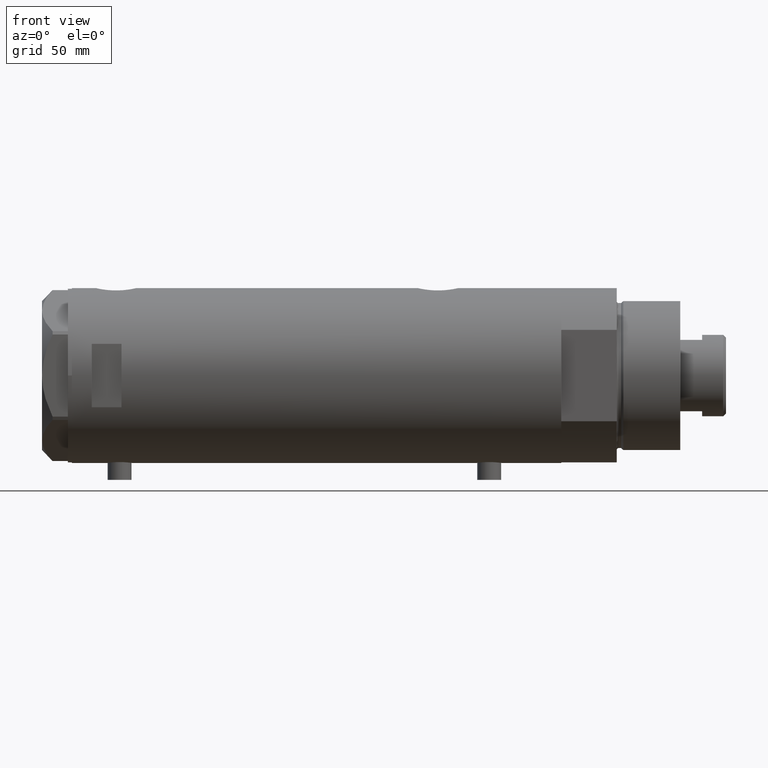
[diagram: clean part render]
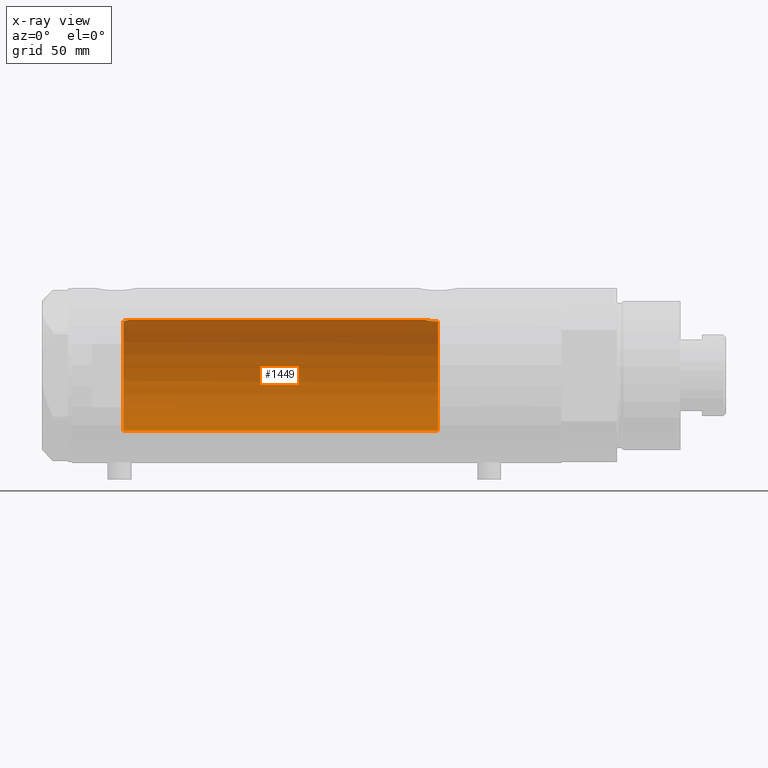
[diagram: x-ray — body ghosted, one internal face saturated and labeled with its STEP entity id]
A machine part, front view, then the same camera in x-ray: the body is ghosted and one INTERNAL B-rep face — a face not visible from any outside direction — is saturated and labeled: STEP entity #1449.
In plain terms, the highlighted cylindrical surface (partial cylindrical patch) has radius 28 mm, axis along (1, 0, -0).
Its self-contained STEP definition (entity closure, byte-faithful):
#18 = CARTESIAN_POINT ( 'NONE',  ( 27.46622653369042411, 5.441176343402230664, 97.20000000000000284 ) ) ;
#29 = EDGE_CURVE ( 'NONE', #2358, #4059, #2152, .T. ) ;
#137 = AXIS2_PLACEMENT_3D ( 'NONE', #1408, #712, #2777 ) ;
#148 = CARTESIAN_POINT ( 'NONE',  ( 27.77951318121830582, 3.511620812961470772, -55.53115835401438005 ) ) ;
#166 = CARTESIAN_POINT ( 'NONE',  ( 27.84585502960274539, 2.940342086136627842, -55.20946914370767189 ) ) ;
#226 = CARTESIAN_POINT ( 'NONE',  ( 27.98435453724556510, 1.072101232728050579, 94.38566097371688102 ) ) ;
#267 = CARTESIAN_POINT ( 'NONE',  ( 28.00000000000000355, 0.5407212781083803321, 94.32000000000002160 ) ) ;
#413 = B_SPLINE_CURVE_WITH_KNOTS ( 'NONE', 3,
 ( #3312, #3016, #4057, #3361, #4341, #1629, #166, #542, #148, #3682, #3381, #2245, #1563, #1932, #560, #1582, #898, #3995, #1895, #1603, #3330, #2971, #1975, #3662 ),
 .UNSPECIFIED., .F., .F.,
 ( 4, 2, 2, 2, 2, 2, 2, 2, 2, 2, 2, 4 ),
 ( 0.02064447638625017609, 0.02194711032043802218, 0.02324974425462586480, 0.02390106122171978612, 0.02455237818881370743, 0.02585501212300156393, 0.02650632909009548177, 0.02715764605718940308, 0.02846027999137725611, 0.02976291392556511262, 0.03041423089265904087, 0.03106554785975296912 ),
 .UNSPECIFIED. ) ;
#542 = CARTESIAN_POINT ( 'NONE',  ( 27.80267334785860101, 3.323944738624905693, -55.41709962017579727 ) ) ;
#555 = ORIENTED_EDGE ( 'NONE', *, *, #4183, .T. ) ;
#560 = CARTESIAN_POINT ( 'NONE',  ( 27.47751794615729537, 5.385218554237039434, -57.31285718566400789 ) ) ;
#569 = CARTESIAN_POINT ( 'NONE',  ( 0.000000000000000000, 0.000000000000000000, 123.2000000000000028 ) ) ;
#594 = ORIENTED_EDGE ( 'NONE', *, *, #1842, .F. ) ;
#606 = VERTEX_POINT ( 'NONE', #18 ) ;
#615 = CARTESIAN_POINT ( 'NONE',  ( 27.93969014165221765, 1.855286977351521704, 94.58124112405663197 ) ) ;
#712 = DIRECTION ( 'NONE',  ( 0.000000000000000000, 0.000000000000000000, 1.000000000000000000 ) ) ;
#798 = AXIS2_PLACEMENT_3D ( 'NONE', #569, #1958, #3832 ) ;
#898 = CARTESIAN_POINT ( 'NONE',  ( 27.36295003163000672, 5.941130795499224959, -58.23794896005178856 ) ) ;
#908 = CARTESIAN_POINT ( 'NONE',  ( -28.00000000000000000, 0.000000000000000000, 97.20000000000000284 ) ) ;
#923 = FACE_OUTER_BOUND ( 'NONE', #3840, .T. ) ;
#926 = CARTESIAN_POINT ( 'NONE',  ( 27.77752716845531822, 3.554080867558359280, 95.33702809021860958 ) ) ;
#969 = CARTESIAN_POINT ( 'NONE',  ( 27.46622653369042411, 5.441176343402230664, 97.20000000000000284 ) ) ;
#1030 = CARTESIAN_POINT ( 'NONE',  ( 28.00000000000000000, 3.429011037612589276E-15, 123.2000000000000028 ) ) ;
#1065 = VERTEX_POINT ( 'NONE', #908 ) ;
#1177 = VECTOR ( 'NONE', #3799, 1000.000000000000000 ) ;
#1243 = CARTESIAN_POINT ( 'NONE',  ( -28.00000000000000000, 0.000000000000000000, 123.2000000000000028 ) ) ;
#1346 = CARTESIAN_POINT ( 'NONE',  ( 28.00000000000000000, 0.000000000000000000, 94.32000000000000739 ) ) ;
#1408 = CARTESIAN_POINT ( 'NONE',  ( 0.000000000000000000, 0.000000000000000000, 97.20000000000000284 ) ) ;
#1449 = ADVANCED_FACE ( 'NONE', ( #923 ), #2294, .F. ) ;
#1563 = CARTESIAN_POINT ( 'NONE',  ( 27.55311958554908713, 4.984468698502469763, -56.79897075987406652 ) ) ;
#1582 = CARTESIAN_POINT ( 'NONE',  ( 27.40633791352276916, 5.740289853568789624, -57.85469713442368800 ) ) ;
#1603 = CARTESIAN_POINT ( 'NONE',  ( 27.23306259439848986, 6.508606919525671941, -60.10931986330979981 ) ) ;
#1629 = CARTESIAN_POINT ( 'NONE',  ( 27.86588799758911605, 2.744542339393446717, -55.11578757899567904 ) ) ;
#1842 = EDGE_CURVE ( 'NONE', #3186, #4059, #413, .T. ) ;
#1895 = CARTESIAN_POINT ( 'NONE',  ( 27.26132124301010506, 6.389601967157234164, -59.46983701249833132 ) ) ;
#1897 = EDGE_CURVE ( 'NONE', #1065, #2358, #2953, .T. ) ;
#1932 = CARTESIAN_POINT ( 'NONE',  ( 27.50226589723265391, 5.257822516958269965, -57.13779315141980675 ) ) ;
#1933 = ORIENTED_EDGE ( 'NONE', *, *, #29, .T. ) ;
#1942 = EDGE_CURVE ( 'NONE', #3017, #3186, #2379, .T. ) ;
#1958 = DIRECTION ( 'NONE',  ( -0.000000000000000000, -0.000000000000000000, -1.000000000000000000 ) ) ;
#1963 = CARTESIAN_POINT ( 'NONE',  ( 27.59012538417911031, 4.776664836238046163, 96.36675298569846859 ) ) ;
#1975 = CARTESIAN_POINT ( 'NONE',  ( 27.21525044627863466, 6.582564457995937701, -60.98128103916471332 ) ) ;
#2041 = ORIENTED_EDGE ( 'NONE', *, *, #4175, .F. ) ;
#2152 = CIRCLE ( 'NONE', #3642, 28.00000000000000000 ) ;
#2245 = CARTESIAN_POINT ( 'NONE',  ( 27.57921322802619812, 4.838471943606454495, -56.63541026849051718 ) ) ;
#2267 = DIRECTION ( 'NONE',  ( -0.000000000000000000, -0.000000000000000000, -1.000000000000000000 ) ) ;
#2294 = CYLINDRICAL_SURFACE ( 'NONE', #798, 28.00000000000000000 ) ;
#2298 = CARTESIAN_POINT ( 'NONE',  ( 27.87926027245440608, 2.609415915507860895, 94.85365920364242243 ) ) ;
#2344 = CARTESIAN_POINT ( 'NONE',  ( 27.71586615897684780, 3.998795151939225523, 95.64767395625746360 ) ) ;
#2358 = VERTEX_POINT ( 'NONE', #4091 ) ;
#2379 = LINE ( 'NONE', #1030, #1177 ) ;
#2777 = DIRECTION ( 'NONE',  ( 1.000000000000000000, 0.000000000000000000, 0.000000000000000000 ) ) ;
#2953 = LINE ( 'NONE', #1243, #3204 ) ;
#2968 = CARTESIAN_POINT ( 'NONE',  ( 28.00000000000000000, 0.000000000000000000, 94.32000000000000739 ) ) ;
#2971 = CARTESIAN_POINT ( 'NONE',  ( 27.21712162367727927, 6.574850051620745539, -60.76016190408789441 ) ) ;
#3016 = CARTESIAN_POINT ( 'NONE',  ( 28.00000000000000711, 0.4344375524774768960, -54.52000000000001734 ) ) ;
#3017 = VERTEX_POINT ( 'NONE', #2968 ) ;
#3186 = VERTEX_POINT ( 'NONE', #4115 ) ;
#3204 = VECTOR ( 'NONE', #2267, 1000.000000000000000 ) ;
#3312 = CARTESIAN_POINT ( 'NONE',  ( 28.00000000000000000, 8.058211040235281960E-16, -54.52000000000001023 ) ) ;
#3330 = CARTESIAN_POINT ( 'NONE',  ( 27.22604017942136778, 6.537820648187905981, -60.32472952793342102 ) ) ;
#3361 = CARTESIAN_POINT ( 'NONE',  ( 27.94984428957576128, 1.729919005741099802, -54.73624844305086157 ) ) ;
#3369 = CARTESIAN_POINT ( 'NONE',  ( 27.92131942247208798, 2.112374604004425116, 94.66259974202708349 ) ) ;
#3381 = CARTESIAN_POINT ( 'NONE',  ( 27.65669575048418594, 4.382057994727783345, -56.17233761202034259 ) ) ;
#3409 = CARTESIAN_POINT ( 'NONE',  ( 27.62184089756353700, 4.590621453796800644, 96.17847296394720047 ) ) ;
#3584 = CARTESIAN_POINT ( 'NONE',  ( 27.21605408577812568, 6.579240077698938371, -61.20000000000000284 ) ) ;
#3642 = AXIS2_PLACEMENT_3D ( 'NONE', #4182, #4224, #3827 ) ;
#3662 = CARTESIAN_POINT ( 'NONE',  ( 27.21605408577812568, 6.579240077698938371, -61.20000000000000284 ) ) ;
#3682 = CARTESIAN_POINT ( 'NONE',  ( 27.70785054350542964, 4.050475470458768434, -55.89631279652926565 ) ) ;
#3761 = CARTESIAN_POINT ( 'NONE',  ( 27.85549123290575579, 2.850830541327404877, 94.96370468682906107 ) ) ;
#3799 = DIRECTION ( 'NONE',  ( -0.000000000000000000, -0.000000000000000000, -1.000000000000000000 ) ) ;
#3827 = DIRECTION ( 'NONE',  ( -1.000000000000000000, 0.000000000000000000, 0.000000000000000000 ) ) ;
#3832 = DIRECTION ( 'NONE',  ( -1.000000000000000000, 0.000000000000000000, 0.000000000000000000 ) ) ;
#3840 = EDGE_LOOP ( 'NONE', ( #3853, #2041, #555, #4297, #1933, #594 ) ) ;
#3853 = ORIENTED_EDGE ( 'NONE', *, *, #1942, .F. ) ;
#3995 = CARTESIAN_POINT ( 'NONE',  ( 27.28989504668422228, 6.268149480003692098, -59.05093353430706316 ) ) ;
#4031 = CIRCLE ( 'NONE', #137, 28.00000000000000000 ) ;
#4057 = CARTESIAN_POINT ( 'NONE',  ( 27.98989376185446076, 0.8673308354119261265, -54.56259295538818321 ) ) ;
#4059 = VERTEX_POINT ( 'NONE', #3584 ) ;
#4067 = CARTESIAN_POINT ( 'NONE',  ( 27.49602064413222635, 5.290780227724656726, 96.97882924682042471 ) ) ;
#4073 = B_SPLINE_CURVE_WITH_KNOTS ( 'NONE', 3,
 ( #969, #4067, #4478, #1963, #3409, #2344, #926, #3761, #2298, #3369, #615, #226, #267, #1346 ),
 .UNSPECIFIED., .F., .F.,
 ( 4, 2, 2, 2, 2, 2, 4 ),
 ( 0.03488855882532450325, 0.03568791961119571754, 0.03648728039706693183, 0.03808600196880933264, 0.03888536275468051917, 0.03968472354055171264, 0.04128344511229409958 ),
 .UNSPECIFIED. ) ;
#4091 = CARTESIAN_POINT ( 'NONE',  ( -28.00000000000000000, 0.000000000000000000, -61.20000000000000284 ) ) ;
#4115 = CARTESIAN_POINT ( 'NONE',  ( 28.00000000000000000, 8.058211040235281960E-16, -54.52000000000001023 ) ) ;
#4175 = EDGE_CURVE ( 'NONE', #606, #3017, #4073, .T. ) ;
#4182 = CARTESIAN_POINT ( 'NONE',  ( 0.000000000000000000, 0.000000000000000000, -61.20000000000000284 ) ) ;
#4183 = EDGE_CURVE ( 'NONE', #606, #1065, #4031, .T. ) ;
#4224 = DIRECTION ( 'NONE',  ( 0.000000000000000000, 0.000000000000000000, -1.000000000000000000 ) ) ;
#4297 = ORIENTED_EDGE ( 'NONE', *, *, #1897, .T. ) ;
#4341 = CARTESIAN_POINT ( 'NONE',  ( 27.92057377942992602, 2.145335874642055440, -54.86449057456584910 ) ) ;
#4478 = CARTESIAN_POINT ( 'NONE',  ( 27.52730847012277948, 5.126288527110444804, 96.76623399461909969 ) ) ;